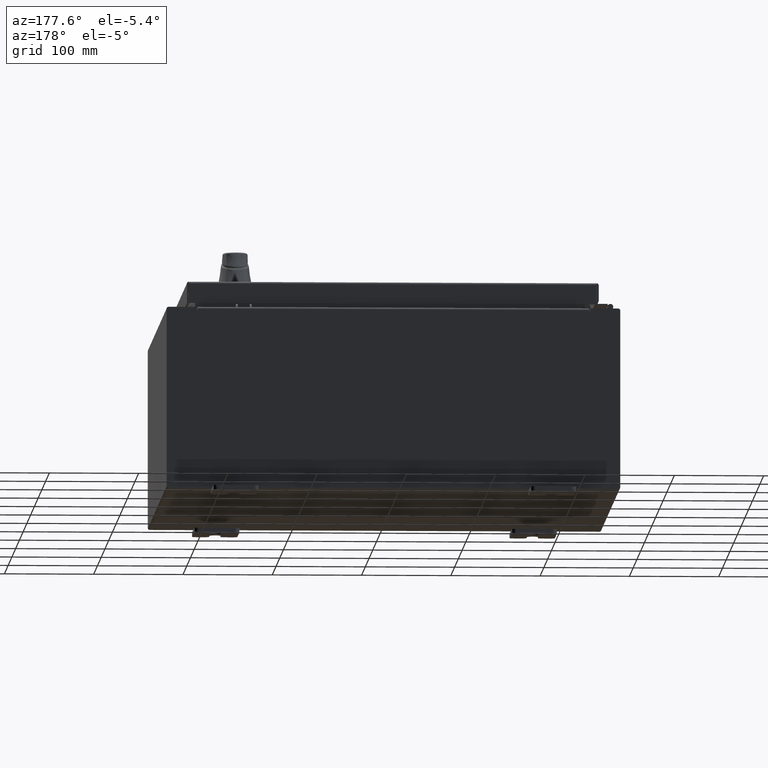
[diagram: clean part render]
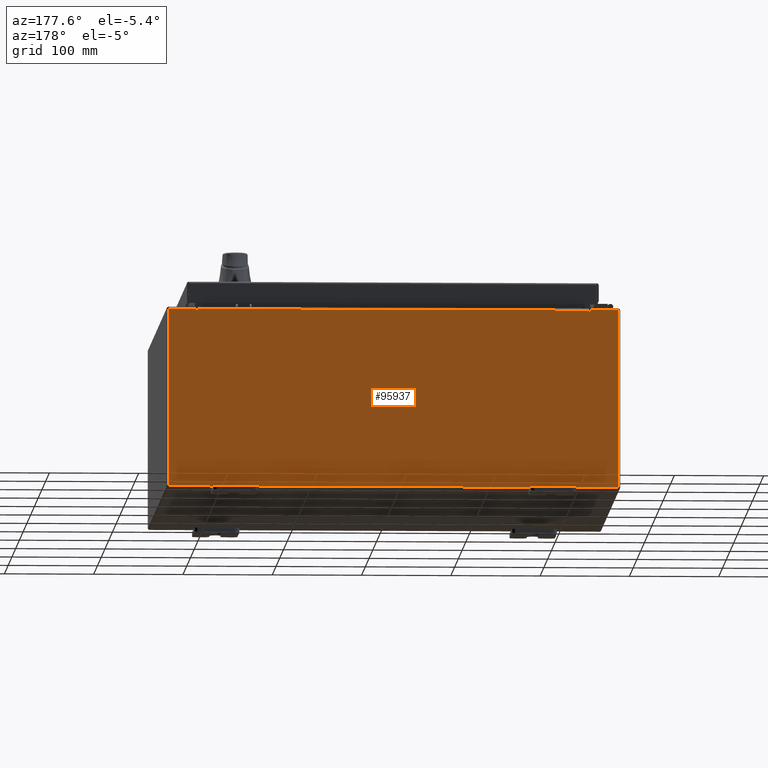
[diagram: same view with one face highlighted and labeled with its STEP entity id]
A machine part, auxiliary view. The second image highlights one B-rep face of the part: STEP entity #95937.
In plain terms, the highlighted planar face has unit normal (0, -1, 0).
Its self-contained STEP definition (entity closure, byte-faithful):
#597 = EDGE_CURVE ( 'NONE', #51395, #76561, #72617, .T. ) ;
#1538 = CARTESIAN_POINT ( 'NONE',  ( -8.674549999999996400, 0.0000000000000000000, 3.925299999999999600 ) ) ;
#1815 = CARTESIAN_POINT ( 'NONE',  ( -8.674549999999996400, 0.0000000000000000000, 3.874949999999999700 ) ) ;
#2071 = CARTESIAN_POINT ( 'NONE',  ( -9.925300000000000000, 0.0000000000000000000, 3.925299999999999600 ) ) ;
#2901 = AXIS2_PLACEMENT_3D ( 'NONE', #80455, #38478, #97431 ) ;
#3315 = LINE ( 'NONE', #74271, #93062 ) ;
#5832 = EDGE_CURVE ( 'NONE', #63477, #14134, #76317, .T. ) ;
#8131 = ORIENTED_EDGE ( 'NONE', *, *, #9691, .F. ) ;
#8810 = EDGE_CURVE ( 'NONE', #107572, #29391, #48359, .T. ) ;
#9691 = EDGE_CURVE ( 'NONE', #98349, #30062, #3315, .T. ) ;
#9961 = EDGE_CURVE ( 'NONE', #63477, #71167, #60051, .T. ) ;
#10953 = CARTESIAN_POINT ( 'NONE',  ( 8.655875000000000000, 0.0000000000000000000, 3.874949999999999700 ) ) ;
#11651 = VECTOR ( 'NONE', #17582, 39.37007874015748100 ) ;
#13250 = EDGE_CURVE ( 'NONE', #35406, #29391, #103227, .T. ) ;
#14134 = VERTEX_POINT ( 'NONE', #22805 ) ;
#15212 = DIRECTION ( 'NONE',  ( -1.000000000000000000, -0.0000000000000000000, -0.0000000000000000000 ) ) ;
#17582 = DIRECTION ( 'NONE',  ( 1.000000000000000000, 0.0000000000000000000, 0.0000000000000000000 ) ) ;
#19394 = DIRECTION ( 'NONE',  ( -0.0000000000000000000, -0.0000000000000000000, 1.000000000000000000 ) ) ;
#19464 = DIRECTION ( 'NONE',  ( 0.0000000000000000000, 0.0000000000000000000, -1.000000000000000000 ) ) ;
#22805 = CARTESIAN_POINT ( 'NONE',  ( 9.925300000000000000, 0.0000000000000000000, 3.925299999999999600 ) ) ;
#23505 = VECTOR ( 'NONE', #19394, 39.37007874015748100 ) ;
#23842 = AXIS2_PLACEMENT_3D ( 'NONE', #10953, #69987, #19464 ) ;
#24510 = ORIENTED_EDGE ( 'NONE', *, *, #36332, .F. ) ;
#26510 = CARTESIAN_POINT ( 'NONE',  ( -8.637199999999996400, -0.0000000000000000000, 3.874949999999999700 ) ) ;
#26713 = VECTOR ( 'NONE', #90674, 39.37007874015748100 ) ;
#27773 = VECTOR ( 'NONE', #30312, 39.37007874015748100 ) ;
#28995 = CIRCLE ( 'NONE', #66927, 0.01867500000000003900 ) ;
#29391 = VERTEX_POINT ( 'NONE', #1538 ) ;
#29586 = FACE_OUTER_BOUND ( 'NONE', #46627, .T. ) ;
#30000 = CARTESIAN_POINT ( 'NONE',  ( -9.925300000000000000, 0.0000000000000000000, -3.925299999999999600 ) ) ;
#30062 = VERTEX_POINT ( 'NONE', #26510 ) ;
#30312 = DIRECTION ( 'NONE',  ( 0.0000000000000000000, 0.0000000000000000000, 1.000000000000000000 ) ) ;
#31489 = EDGE_CURVE ( 'NONE', #86704, #35406, #73608, .T. ) ;
#32292 = DIRECTION ( 'NONE',  ( 0.0000000000000000000, 0.0000000000000000000, -1.000000000000000000 ) ) ;
#34875 = ORIENTED_EDGE ( 'NONE', *, *, #9961, .F. ) ;
#34992 = VECTOR ( 'NONE', #93796, 39.37007874015748100 ) ;
#35406 = VERTEX_POINT ( 'NONE', #89461 ) ;
#36332 = EDGE_CURVE ( 'NONE', #71167, #51395, #58098, .T. ) ;
#36906 = EDGE_CURVE ( 'NONE', #30062, #107572, #28995, .T. ) ;
#37733 = DIRECTION ( 'NONE',  ( 1.000000000000000000, 0.0000000000000000000, 0.0000000000000000000 ) ) ;
#38478 = DIRECTION ( 'NONE',  ( 0.0000000000000000000, -1.000000000000000000, 0.0000000000000000000 ) ) ;
#38923 = ORIENTED_EDGE ( 'NONE', *, *, #5832, .T. ) ;
#39771 = ORIENTED_EDGE ( 'NONE', *, *, #597, .F. ) ;
#43082 = CARTESIAN_POINT ( 'NONE',  ( -9.925300000000000000, 0.0000000000000000000, 3.925299999999999600 ) ) ;
#43269 = VECTOR ( 'NONE', #15212, 39.37007874015748100 ) ;
#44699 = CARTESIAN_POINT ( 'NONE',  ( 9.925300000000000000, 0.0000000000000000000, 3.925299999999999600 ) ) ;
#45989 = EDGE_CURVE ( 'NONE', #96229, #86704, #88121, .T. ) ;
#46201 = CARTESIAN_POINT ( 'NONE',  ( -9.925300000000000000, 0.0000000000000000000, 3.925299999999999600 ) ) ;
#46559 = PLANE ( 'NONE',  #2901 ) ;
#46627 = EDGE_LOOP ( 'NONE', ( #52335, #102775, #8131, #87197, #39771, #24510, #34875, #38923, #62359, #52770, #55440, #71273 ) ) ;
#47541 = DIRECTION ( 'NONE',  ( -0.0000000000000000000, 1.000000000000000000, -0.0000000000000000000 ) ) ;
#48359 = LINE ( 'NONE', #88092, #70718 ) ;
#48867 = LINE ( 'NONE', #44699, #71214 ) ;
#49275 = CARTESIAN_POINT ( 'NONE',  ( 8.637200000000000000, 0.0000000000000000000, 3.874949999999999700 ) ) ;
#51395 = VERTEX_POINT ( 'NONE', #49275 ) ;
#52335 = ORIENTED_EDGE ( 'NONE', *, *, #8810, .F. ) ;
#52709 = EDGE_CURVE ( 'NONE', #14134, #96229, #48867, .T. ) ;
#52770 = ORIENTED_EDGE ( 'NONE', *, *, #45989, .T. ) ;
#54754 = CARTESIAN_POINT ( 'NONE',  ( 8.674550000000001800, 0.0000000000000000000, 3.925299999999999600 ) ) ;
#55440 = ORIENTED_EDGE ( 'NONE', *, *, #31489, .T. ) ;
#56195 = CARTESIAN_POINT ( 'NONE',  ( -9.925300000000000000, 0.0000000000000000000, -3.925299999999999600 ) ) ;
#58098 = CIRCLE ( 'NONE', #23842, 0.01867500000000003900 ) ;
#60051 = LINE ( 'NONE', #102994, #34992 ) ;
#61246 = DIRECTION ( 'NONE',  ( 0.0000000000000000000, 0.0000000000000000000, -1.000000000000000000 ) ) ;
#62359 = ORIENTED_EDGE ( 'NONE', *, *, #52709, .T. ) ;
#63477 = VERTEX_POINT ( 'NONE', #54754 ) ;
#64983 = CARTESIAN_POINT ( 'NONE',  ( 8.637200000000000000, 0.0000000000000000000, 3.912299999999999700 ) ) ;
#66749 = CARTESIAN_POINT ( 'NONE',  ( 9.925300000000000000, 0.0000000000000000000, -3.925299999999999600 ) ) ;
#66927 = AXIS2_PLACEMENT_3D ( 'NONE', #98033, #47541, #106467 ) ;
#69987 = DIRECTION ( 'NONE',  ( -0.0000000000000000000, 1.000000000000000000, -0.0000000000000000000 ) ) ;
#70718 = VECTOR ( 'NONE', #96566, 39.37007874015748100 ) ;
#71167 = VERTEX_POINT ( 'NONE', #88107 ) ;
#71214 = VECTOR ( 'NONE', #61246, 39.37007874015748100 ) ;
#71273 = ORIENTED_EDGE ( 'NONE', *, *, #13250, .T. ) ;
#71549 = LINE ( 'NONE', #82179, #26713 ) ;
#72617 = LINE ( 'NONE', #73385, #27773 ) ;
#73385 = CARTESIAN_POINT ( 'NONE',  ( 8.637200000000000000, 0.0000000000000000000, 0.0000000000000000000 ) ) ;
#73608 = LINE ( 'NONE', #2071, #23505 ) ;
#74271 = CARTESIAN_POINT ( 'NONE',  ( -8.637199999999996400, -0.0000000000000000000, 0.0000000000000000000 ) ) ;
#76317 = LINE ( 'NONE', #43082, #11651 ) ;
#76561 = VERTEX_POINT ( 'NONE', #64983 ) ;
#79120 = CARTESIAN_POINT ( 'NONE',  ( -8.637199999999996400, 1.024442997624098700E-016, 3.912299999999999700 ) ) ;
#80455 = CARTESIAN_POINT ( 'NONE',  ( 0.0000000000000000000, 0.0000000000000000000, 0.0000000000000000000 ) ) ;
#82179 = CARTESIAN_POINT ( 'NONE',  ( -8.637200000000000000, 1.024442997624098700E-016, 3.912299999999999700 ) ) ;
#86704 = VERTEX_POINT ( 'NONE', #30000 ) ;
#87197 = ORIENTED_EDGE ( 'NONE', *, *, #98105, .T. ) ;
#88092 = CARTESIAN_POINT ( 'NONE',  ( -8.674549999999996400, -0.0000000000000000000, 0.0000000000000000000 ) ) ;
#88107 = CARTESIAN_POINT ( 'NONE',  ( 8.674550000000000000, 0.0000000000000000000, 3.874949999999999700 ) ) ;
#88121 = LINE ( 'NONE', #56195, #43269 ) ;
#89461 = CARTESIAN_POINT ( 'NONE',  ( -9.925300000000000000, 0.0000000000000000000, 3.925299999999999600 ) ) ;
#90674 = DIRECTION ( 'NONE',  ( 1.000000000000000000, 0.0000000000000000000, 0.0000000000000000000 ) ) ;
#93062 = VECTOR ( 'NONE', #32292, 39.37007874015748100 ) ;
#93796 = DIRECTION ( 'NONE',  ( -6.510859170600007400E-014, 0.0000000000000000000, -1.000000000000000000 ) ) ;
#95937 = ADVANCED_FACE ( 'NONE', ( #29586 ), #46559, .F. ) ;
#96229 = VERTEX_POINT ( 'NONE', #66749 ) ;
#96566 = DIRECTION ( 'NONE',  ( 0.0000000000000000000, 0.0000000000000000000, 1.000000000000000000 ) ) ;
#97431 = DIRECTION ( 'NONE',  ( 0.0000000000000000000, -0.0000000000000000000, -1.000000000000000000 ) ) ;
#98033 = CARTESIAN_POINT ( 'NONE',  ( -8.655874999999996400, 0.0000000000000000000, 3.874949999999999700 ) ) ;
#98105 = EDGE_CURVE ( 'NONE', #98349, #76561, #71549, .T. ) ;
#98349 = VERTEX_POINT ( 'NONE', #79120 ) ;
#100626 = VECTOR ( 'NONE', #37733, 39.37007874015748100 ) ;
#102775 = ORIENTED_EDGE ( 'NONE', *, *, #36906, .F. ) ;
#102994 = CARTESIAN_POINT ( 'NONE',  ( 8.674549999999747700, -0.0000000000000000000, -5.647877341832665300E-013 ) ) ;
#103227 = LINE ( 'NONE', #46201, #100626 ) ;
#106467 = DIRECTION ( 'NONE',  ( 0.0000000000000000000, 0.0000000000000000000, -1.000000000000000000 ) ) ;
#107572 = VERTEX_POINT ( 'NONE', #1815 ) ;